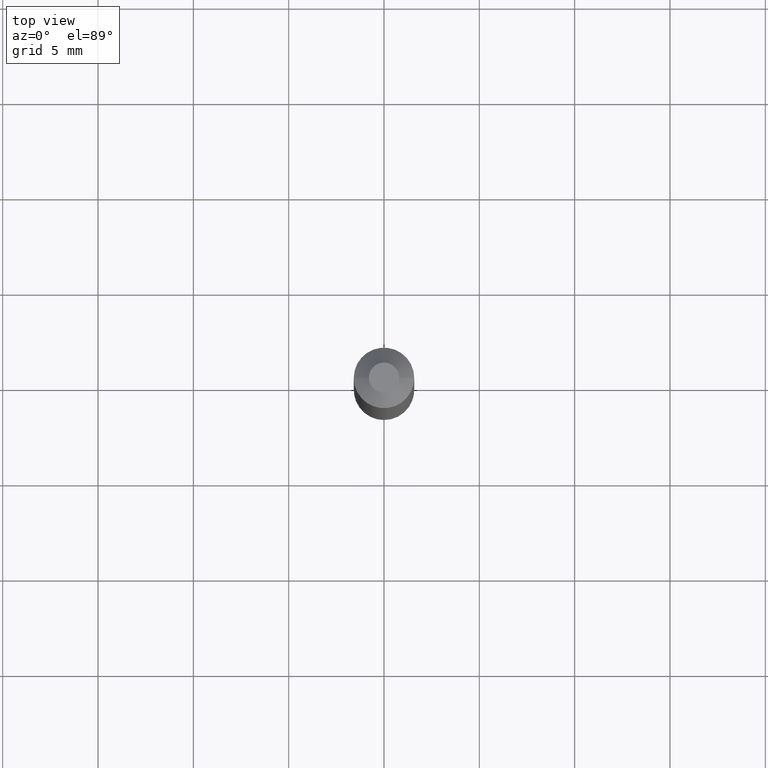
[diagram: clean part render]
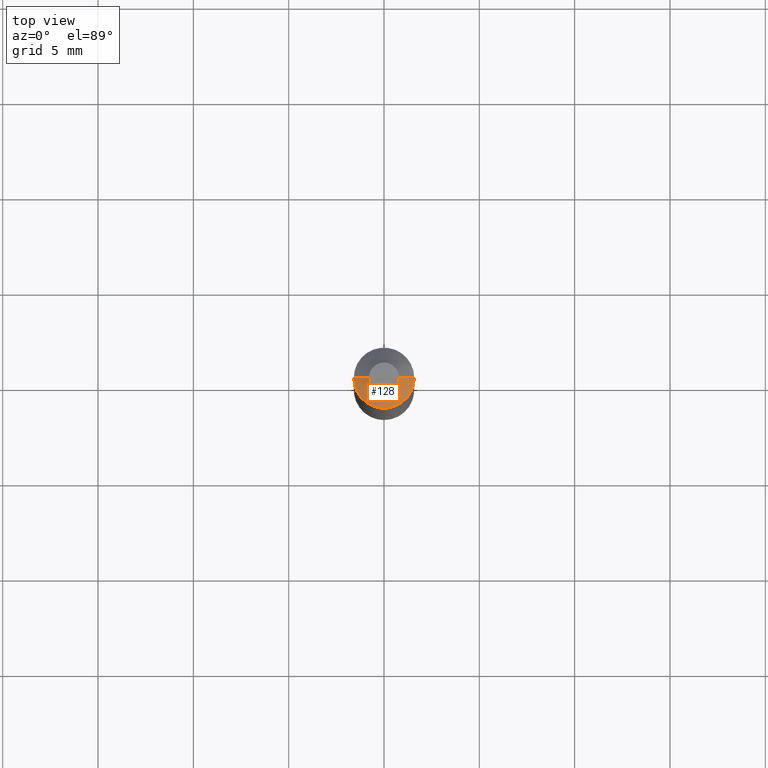
[diagram: same view with one face highlighted and labeled with its STEP entity id]
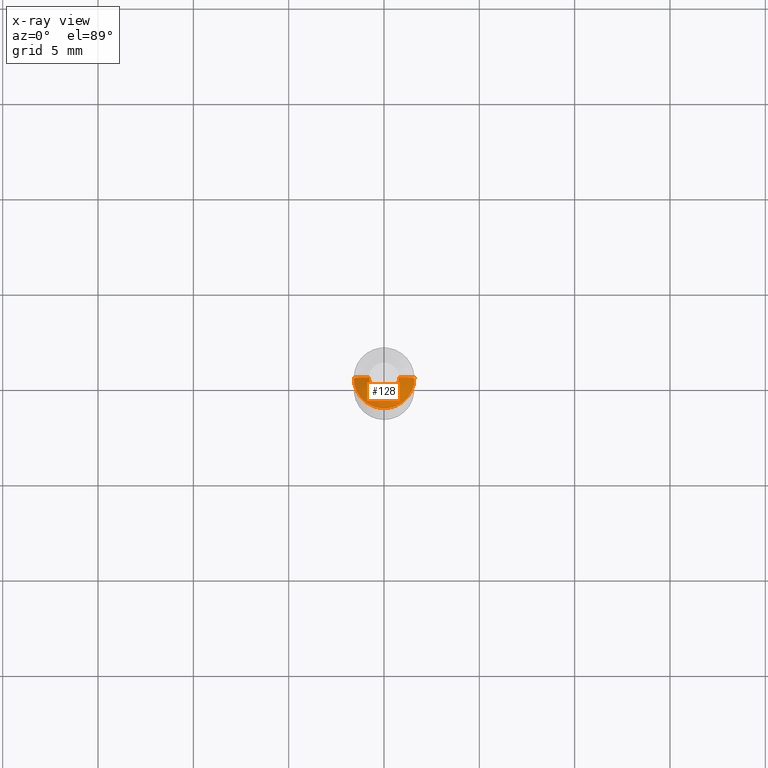
[diagram: x-ray of the same camera — body ghosted, the highlighted face saturated]
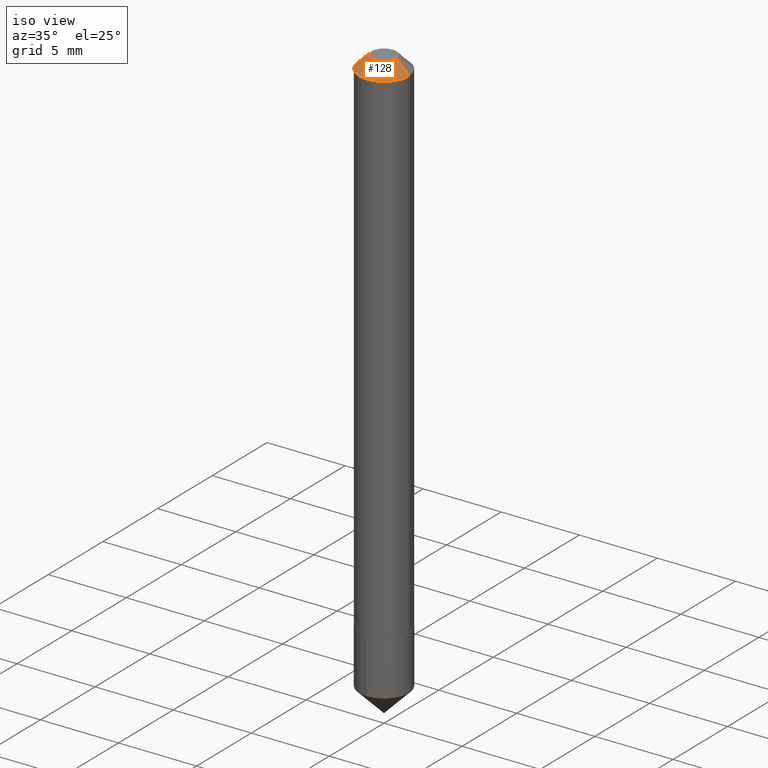
[diagram: same view with one face highlighted and labeled with its STEP entity id]
A machine part, top view. The second image highlights one B-rep face of the part: STEP entity #128.
The next image is the same camera in x-ray: the body ghosted, the highlighted face saturated — about 0% of this face is hidden behind the body in this view.
A second angle (iso view) of the same face is appended — the face is thin or edge-on in the first view.
In plain terms, the highlighted conical surface has half-angle 45 deg.
Its self-contained STEP definition (entity closure, byte-faithful):
#21 = CARTESIAN_POINT ( 'NONE',  ( 0.06250000000000001388, -5.378899166995698233E-16, -0.03125000000000020817 ) ) ;
#24 = DIRECTION ( 'NONE',  ( -2.445468806185136597E-29, 3.491481338843145583E-15, 1.000000000000000000 ) ) ;
#34 = DIRECTION ( 'NONE',  ( -0.7071067811865454633, 2.468850131082235367E-15, -0.7071067811865495711 ) ) ;
#50 = AXIS2_PLACEMENT_3D ( 'NONE', #374, #264, #202 ) ;
#58 = CONICAL_SURFACE ( 'NONE', #207, 0.06250000000000001388, 0.7853981633974453924 ) ;
#71 = ORIENTED_EDGE ( 'NONE', *, *, #344, .T. ) ;
#87 = EDGE_CURVE ( 'NONE', #132, #390, #220, .T. ) ;
#88 = CARTESIAN_POINT ( 'NONE',  ( 0.03125000000000000694, -3.761402395649651909E-16, -3.091620844447285598E-17 ) ) ;
#93 = VECTOR ( 'NONE', #34, 39.37007874015748143 ) ;
#124 = DIRECTION ( 'NONE',  ( 1.000000000000000000, -6.982962677686267499E-15, 4.877000552086102004E-29 ) ) ;
#128 = ADVANCED_FACE ( 'NONE', ( #322 ), #58, .T. ) ;
#132 = VERTEX_POINT ( 'NONE', #320 ) ;
#138 = LINE ( 'NONE', #21, #269 ) ;
#174 = DIRECTION ( 'NONE',  ( 2.445468806185136597E-29, -3.491481338843145583E-15, -1.000000000000000000 ) ) ;
#175 = CARTESIAN_POINT ( 'NONE',  ( -0.06250000000000001388, 3.273263755165427167E-16, -0.03125000000000020817 ) ) ;
#202 = DIRECTION ( 'NONE',  ( 1.000000000000000000, -6.982962677686265922E-15, 0.000000000000000000 ) ) ;
#204 = DIRECTION ( 'NONE',  ( 0.7071067811865454633, -7.319954787623248157E-15, -0.7071067811865495711 ) ) ;
#207 = AXIS2_PLACEMENT_3D ( 'NONE', #256, #174, #353 ) ;
#215 = ORIENTED_EDGE ( 'NONE', *, *, #263, .F. ) ;
#216 = LINE ( 'NONE', #175, #93 ) ;
#220 = CIRCLE ( 'NONE', #50, 0.06250000000000001388 ) ;
#222 = VERTEX_POINT ( 'NONE', #288 ) ;
#247 = EDGE_CURVE ( 'NONE', #312, #390, #138, .T. ) ;
#256 = CARTESIAN_POINT ( 'NONE',  ( 7.642090019328602662E-31, -1.091087918388490267E-16, -0.03125000000000020817 ) ) ;
#263 = EDGE_CURVE ( 'NONE', #222, #312, #313, .T. ) ;
#264 = DIRECTION ( 'NONE',  ( -2.445468806185136597E-29, 3.491481338843145583E-15, 1.000000000000000000 ) ) ;
#269 = VECTOR ( 'NONE', #204, 39.37007874015748143 ) ;
#271 = ORIENTED_EDGE ( 'NONE', *, *, #87, .T. ) ;
#278 = CARTESIAN_POINT ( 'NONE',  ( 0.06250000000000001388, -5.455439591942407701E-16, -0.03125000000000020817 ) ) ;
#288 = CARTESIAN_POINT ( 'NONE',  ( -0.03125000000000000694, 2.727719795971192510E-16, -3.091620844447665237E-17 ) ) ;
#307 = CARTESIAN_POINT ( 'NONE',  ( 7.560462335648095015E-46, -1.079433648516691094E-31, -3.091620844447493906E-17 ) ) ;
#310 = ORIENTED_EDGE ( 'NONE', *, *, #247, .F. ) ;
#312 = VERTEX_POINT ( 'NONE', #88 ) ;
#313 = CIRCLE ( 'NONE', #318, 0.03125000000000000694 ) ;
#318 = AXIS2_PLACEMENT_3D ( 'NONE', #307, #24, #124 ) ;
#320 = CARTESIAN_POINT ( 'NONE',  ( -0.06250000000000001388, -1.879055185982692991E-15, -0.03125000000000020817 ) ) ;
#322 = FACE_OUTER_BOUND ( 'NONE', #340, .T. ) ;
#340 = EDGE_LOOP ( 'NONE', ( #310, #215, #71, #271 ) ) ;
#344 = EDGE_CURVE ( 'NONE', #222, #132, #216, .T. ) ;
#353 = DIRECTION ( 'NONE',  ( -1.000000000000000000, 6.982962677686265922E-15, 0.000000000000000000 ) ) ;
#374 = CARTESIAN_POINT ( 'NONE',  ( 7.642090019328602662E-31, -1.091087918388490267E-16, -0.03125000000000020817 ) ) ;
#390 = VERTEX_POINT ( 'NONE', #278 ) ;